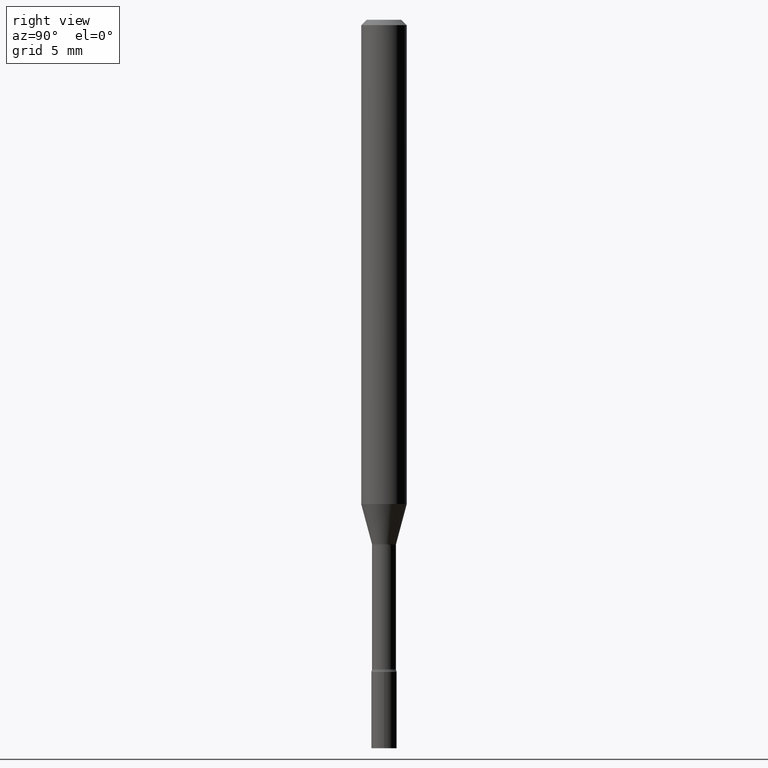
[diagram: clean part render]
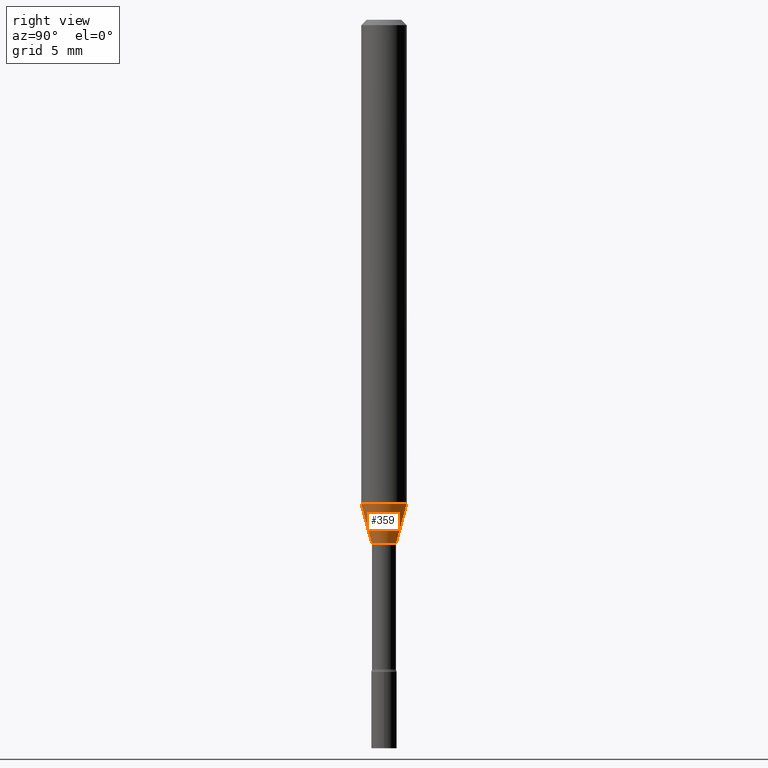
[diagram: same view with one face highlighted and labeled with its STEP entity id]
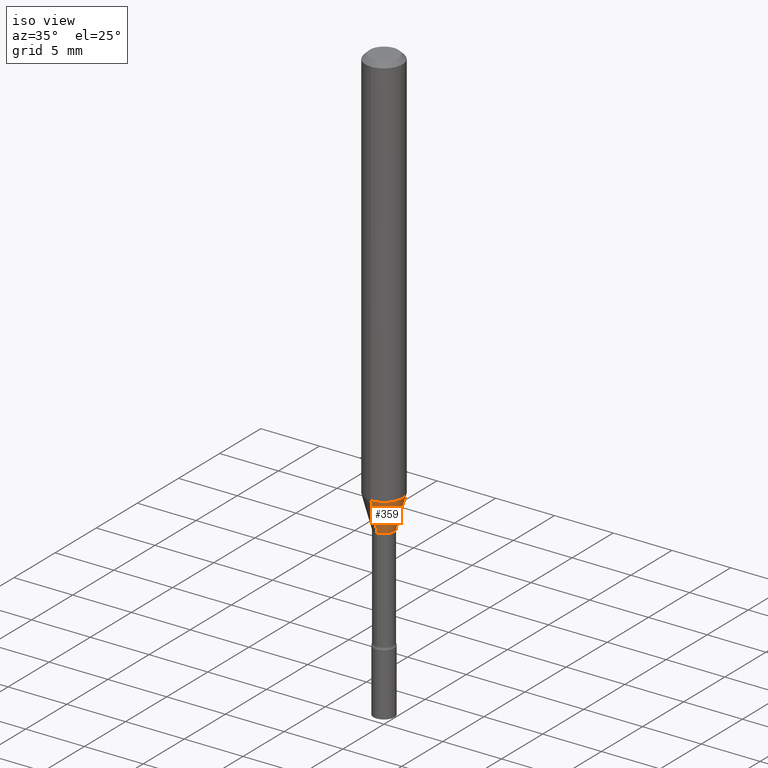
[diagram: same view with one face highlighted and labeled with its STEP entity id]
A machine part, right view. The second image highlights one B-rep face of the part: STEP entity #359.
A second angle (iso view) of the same face is appended — the face is thin or edge-on in the first view.
In plain terms, the highlighted conical surface has half-angle 15 deg.
Its self-contained STEP definition (entity closure, byte-faithful):
#22 = FACE_OUTER_BOUND ( 'NONE', #124, .T. ) ;
#31 = DIRECTION ( 'NONE',  ( -2.445497550844091636E-29, 3.491440174855477289E-15, 1.000000000000000000 ) ) ;
#43 = ORIENTED_EDGE ( 'NONE', *, *, #506, .F. ) ;
#44 = DIRECTION ( 'NONE',  ( -6.982962677686265922E-15, -1.000000000000000000, 4.370956789862821150E-15 ) ) ;
#92 = VERTEX_POINT ( 'NONE', #294 ) ;
#102 = AXIS2_PLACEMENT_3D ( 'NONE', #341, #31, #391 ) ;
#115 = DIRECTION ( 'NONE',  ( -2.445497550844091636E-29, 3.491440174855477289E-15, 1.000000000000000000 ) ) ;
#124 = EDGE_LOOP ( 'NONE', ( #357, #496, #383, #43 ) ) ;
#144 = CARTESIAN_POINT ( 'NONE',  ( -2.333085523452895390E-16, -0.03341111260566900082, -1.438092501787272992 ) ) ;
#153 = CIRCLE ( 'NONE', #185, 0.03341111260566397706 ) ;
#161 = AXIS2_PLACEMENT_3D ( 'NONE', #205, #247, #44 ) ;
#175 = VECTOR ( 'NONE', #329, 39.37007874015749564 ) ;
#185 = AXIS2_PLACEMENT_3D ( 'NONE', #464, #115, #511 ) ;
#205 = CARTESIAN_POINT ( 'NONE',  ( 3.251365528373244956E-29, -4.641978980917113845E-15, -1.329531296095961546 ) ) ;
#222 = DIRECTION ( 'NONE',  ( 1.839019923739599526E-15, 0.2588190451025248473, 0.9659258262890670910 ) ) ;
#246 = CARTESIAN_POINT ( 'NONE',  ( -2.333085523452895390E-16, -0.03341111260566900082, -1.438092501787272992 ) ) ;
#247 = DIRECTION ( 'NONE',  ( -2.445497550844091636E-29, 3.491440174855477289E-15, 1.000000000000000000 ) ) ;
#252 = EDGE_CURVE ( 'NONE', #499, #92, #422, .T. ) ;
#294 = CARTESIAN_POINT ( 'NONE',  ( 4.440892098500948609E-16, 0.06249999999999532319, -1.329531296095961768 ) ) ;
#295 = CARTESIAN_POINT ( 'NONE',  ( 2.374002335562076701E-16, 0.03341111260565896024, -1.438092501787272992 ) ) ;
#296 = VERTEX_POINT ( 'NONE', #246 ) ;
#309 = CARTESIAN_POINT ( 'NONE',  ( 3.407447217031514627E-16, 0.03341111260565895330, -1.438092501787272992 ) ) ;
#329 = DIRECTION ( 'NONE',  ( -1.807323732225329350E-15, -0.2588190451025180194, 0.9659258262890689783 ) ) ;
#333 = EDGE_CURVE ( 'NONE', #455, #92, #495, .T. ) ;
#341 = CARTESIAN_POINT ( 'NONE',  ( 3.516851691008029319E-29, -5.021013935898507834E-15, -1.438092501787272992 ) ) ;
#349 = VECTOR ( 'NONE', #222, 39.37007874015748143 ) ;
#357 = ORIENTED_EDGE ( 'NONE', *, *, #466, .T. ) ;
#359 = ADVANCED_FACE ( 'NONE', ( #22 ), #402, .T. ) ;
#383 = ORIENTED_EDGE ( 'NONE', *, *, #252, .F. ) ;
#391 = DIRECTION ( 'NONE',  ( -6.982962677686266711E-15, -1.000000000000000000, 0.000000000000000000 ) ) ;
#402 = CONICAL_SURFACE ( 'NONE', #102, 0.03341111260566397706, 0.2617993877991501850 ) ;
#422 = CIRCLE ( 'NONE', #161, 0.06250000000000000000 ) ;
#447 = LINE ( 'NONE', #144, #175 ) ;
#455 = VERTEX_POINT ( 'NONE', #309 ) ;
#464 = CARTESIAN_POINT ( 'NONE',  ( 3.516851691008029319E-29, -5.021013935898507834E-15, -1.438092501787272992 ) ) ;
#466 = EDGE_CURVE ( 'NONE', #296, #455, #153, .T. ) ;
#484 = CARTESIAN_POINT ( 'NONE',  ( -4.364351673553592768E-16, -0.06250000000000467681, -1.329531296095961101 ) ) ;
#495 = LINE ( 'NONE', #295, #349 ) ;
#496 = ORIENTED_EDGE ( 'NONE', *, *, #333, .T. ) ;
#499 = VERTEX_POINT ( 'NONE', #484 ) ;
#506 = EDGE_CURVE ( 'NONE', #296, #499, #447, .T. ) ;
#511 = DIRECTION ( 'NONE',  ( -6.982962677686266711E-15, -1.000000000000000000, 0.000000000000000000 ) ) ;